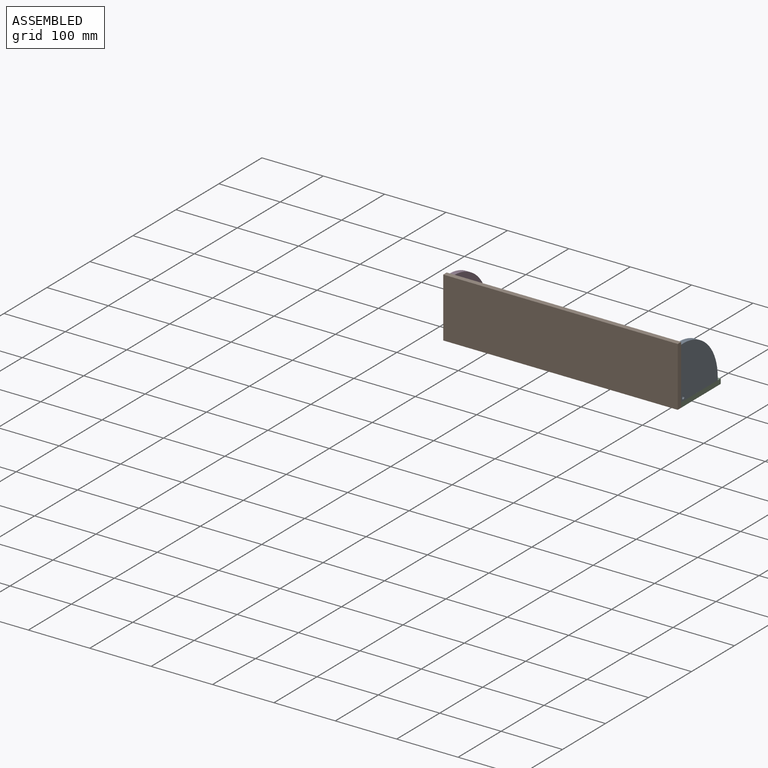
[diagram: assembled view]
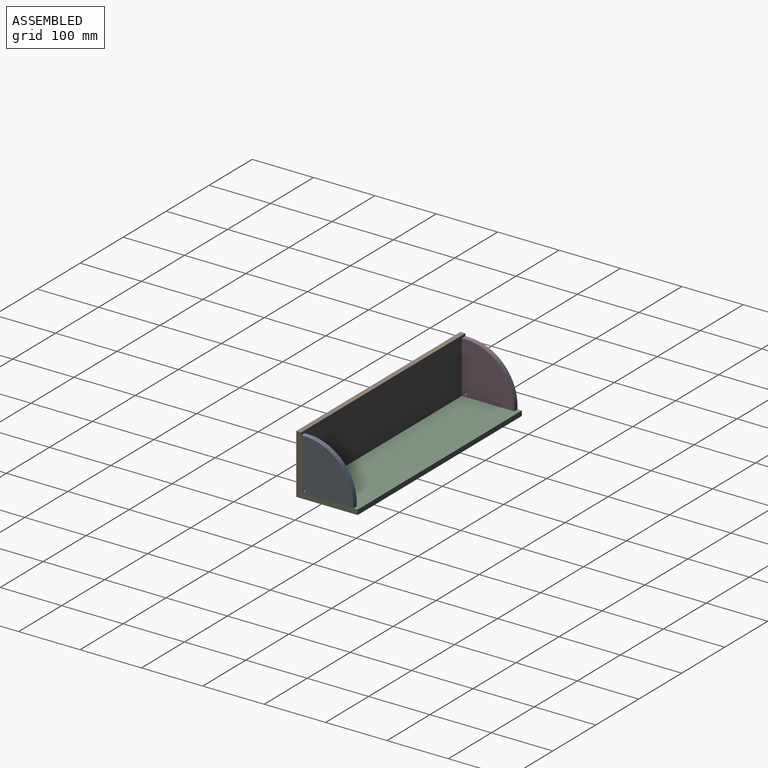
[diagram: assembled view, second angle]
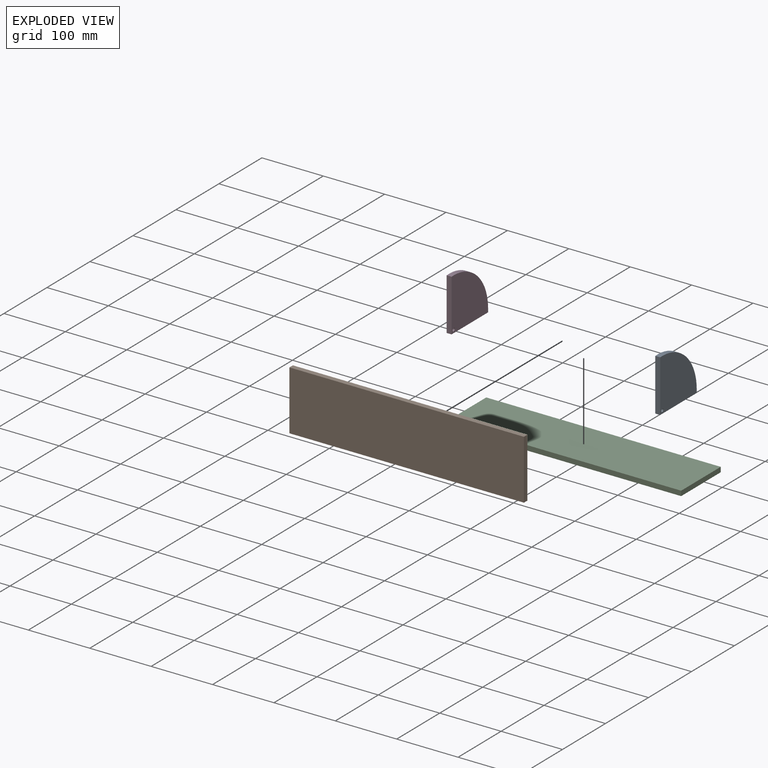
[diagram: exploded view]
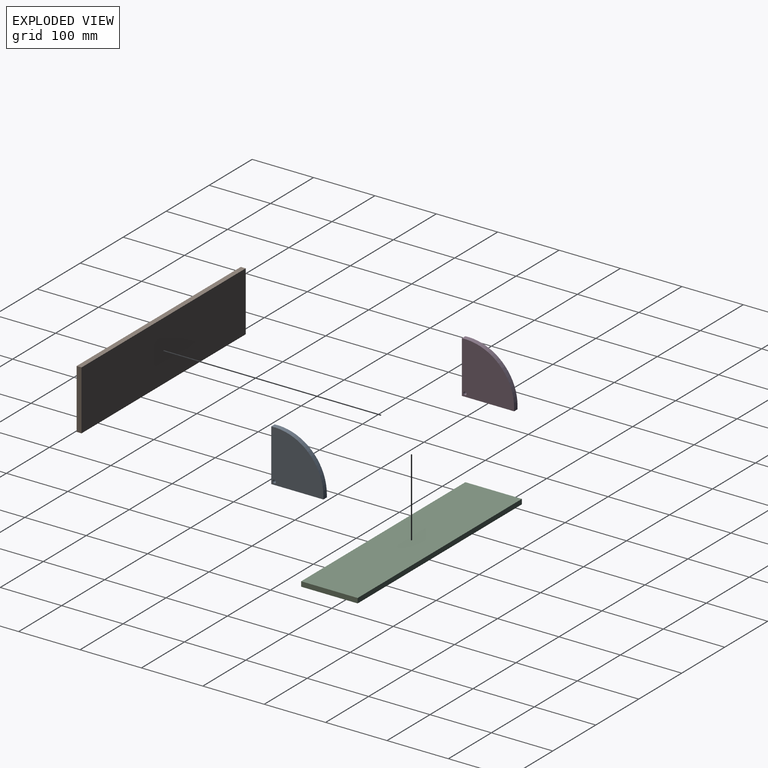
[diagram: exploded view, second angle]
ASSEMBLY  parts=4 mates=3
PART A: 7 faces, bbox 8x85x85 mm
  f0: plane 8x5mm, normal (0,1,0), area 40mm2, adj f1,f3,f5,f6
  f1: cylinder r=80mm len=85mm, axis (-1,0,0), area 1045.3mm2, adj f0,f2,f5,f6
  f2: plane 84.84x8mm, normal (0,-1,0), area 678.7mm2, adj f1,f3,f5,f6
  f3: plane 85x8mm, normal (0,0,-1), area 680mm2, adj f0,f2,f5,f6
  f4: cylinder r=2.5mm len=8mm, axis (-1,0,0), area 125.7mm2, adj f5,f6
  f5: plane 85x85mm, normal (1,0,0), area 5831.7mm2, adj f0,f1,f2,f3,f4
  f6: plane 85x85mm, normal (-1,0,0), area 5831.7mm2, adj f0,f1,f2,f3,f4
PART B: 6 faces, bbox 382x8x97 mm
  f0: plane 382x97mm, normal (0,1,0), area 37054mm2, adj f1,f3,f4,f5
  f1: plane 382x8mm, normal (0,0,1), area 3056mm2, adj f0,f2,f4,f5
  f2: plane 382x97mm, normal (0,-1,0), area 37054mm2, adj f1,f3,f4,f5
  f3: plane 382x8mm, normal (0,0,-1), area 3056mm2, adj f0,f2,f4,f5
  f4: plane 97x8mm, normal (1,0,0), area 776mm2, adj f0,f1,f2,f3
  f5: plane 97x8mm, normal (-1,0,0), area 776mm2, adj f0,f1,f2,f3
PART C: 6 faces, bbox 382x92x8 mm
  f0: plane 382x92mm, normal (0,0,1), area 35144mm2, adj f1,f3,f4,f5
  f1: plane 382x8mm, normal (0,-1,0), area 3056mm2, adj f0,f2,f4,f5
  f2: plane 382x92mm, normal (0,0,-1), area 35144mm2, adj f1,f3,f4,f5
  f3: plane 382x8mm, normal (0,1,0), area 3056mm2, adj f0,f2,f4,f5
  f4: plane 92x8mm, normal (1,0,0), area 736mm2, adj f0,f1,f2,f3
  f5: plane 92x8mm, normal (-1,0,0), area 736mm2, adj f0,f1,f2,f3
PART D: same geometry as A
PLACE A t=(370.57,27.18,-13.47)mm
PLACE B t=(-3.43,27.18,-13.47)mm
PLACE C t=(-3.43,27.18,-13.47)mm fixed
PLACE D t=(-3.43,27.18,-13.47)mm
MATE fastened A.f2 <-> C.f1  axis (0,-1,0) through (378.57,35.18,3.53)mm
MATE fastened D.f2 <-> C.f1  axis (0,-1,0) through (-3.43,35.18,3.53)mm
MATE fastened B.f4 <-> C.f4  axis (-1,0,0) through (378.57,35.18,-4.47)mm
